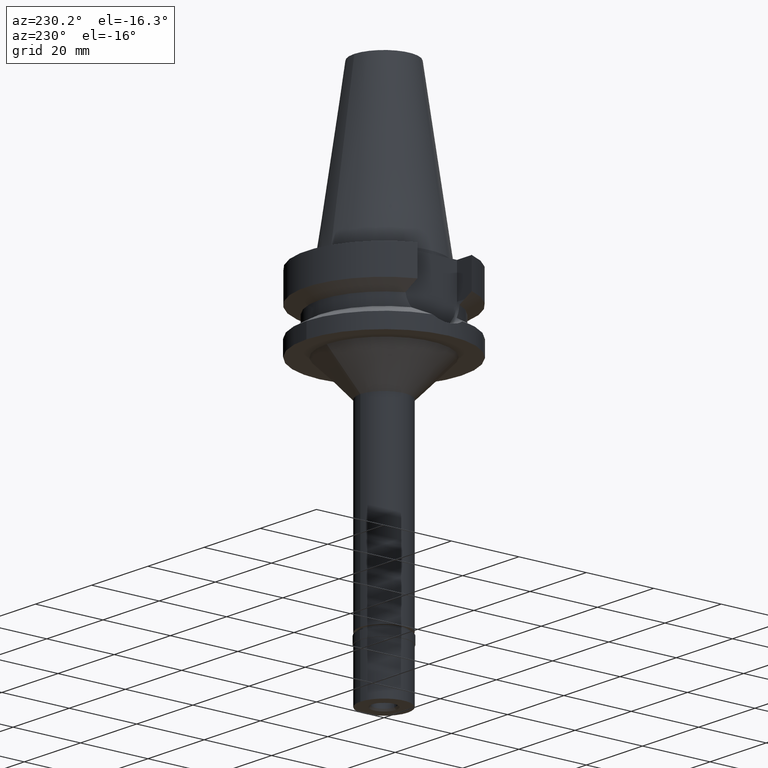
[diagram: clean part render]
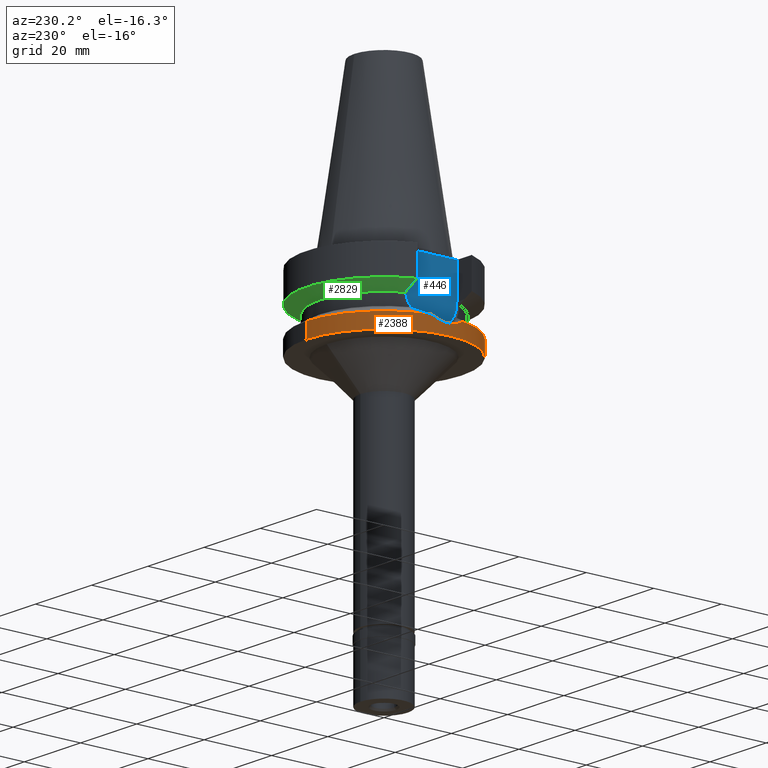
[diagram: same view with three faces highlighted in distinct colors, each labeled with its STEP entity id]
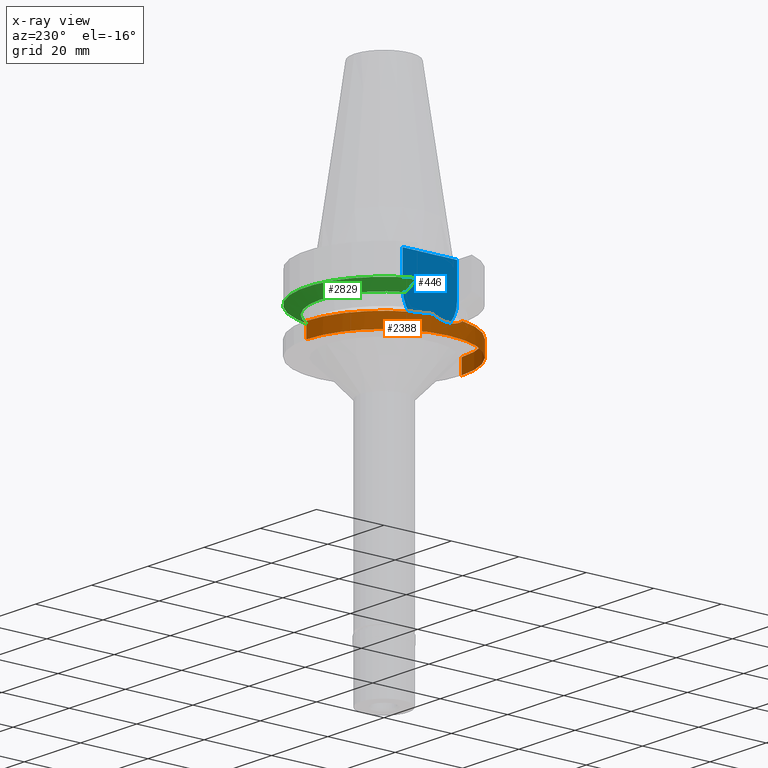
[diagram: x-ray of the same camera — body ghosted, the three highlighted faces saturated]
A machine part, auxiliary view with three faces highlighted in distinct colors.
The next image is the same camera in x-ray (body ghosted, the three faces saturated) — at least one of them is partly hidden behind the body in this view.
Their STEP definitions:

[orange] entity #2388 — the highlighted cylindrical surface (partial cylindrical patch) has radius 23.0018 mm, axis along (0, 0, -1).
#2 = CARTESIAN_POINT ( 'NONE',  ( -22.88683763572254648, -2.297901760489376333, -18.66510098225285574 ) ) ;
#41 = CARTESIAN_POINT ( 'NONE',  ( 0.0000000000000000000, -23.00179173279000011, -17.63279163029000074 ) ) ;
#47 = CARTESIAN_POINT ( 'NONE',  ( -22.86908857843803489, 2.468659208218110468, -18.61236205488814477 ) ) ;
#87 = DIRECTION ( 'NONE',  ( 0.0000000000000000000, -1.000000000000000000, 0.0000000000000000000 ) ) ;
#248 = CARTESIAN_POINT ( 'NONE',  ( 0.0000000000000000000, 1.908856965831000054E-14, 55.87000000000000455 ) ) ;
#279 = VECTOR ( 'NONE', #1576, 1000.000000000000000 ) ;
#305 = DIRECTION ( 'NONE',  ( -0.9807796963072338281, 0.1951183930630069618, 0.0000000000000000000 ) ) ;
#327 = CARTESIAN_POINT ( 'NONE',  ( -22.80337106430317462, 3.017825907546090924, -18.41532620679325660 ) ) ;
#346 = DIRECTION ( 'NONE',  ( 0.0000000000000000000, -1.000000000000000000, 0.0000000000000000000 ) ) ;
#406 = CARTESIAN_POINT ( 'NONE',  ( -22.70544777319404162, -3.755409983498743554, -18.12483797968343779 ) ) ;
#433 = CARTESIAN_POINT ( 'NONE',  ( -22.91445897748248584, -2.007266898677665612, -18.74685992708022297 ) ) ;
#599 = CARTESIAN_POINT ( 'NONE',  ( -22.89872747336698211, -2.176930864838070967, -18.70034899222827107 ) ) ;
#611 = ORIENTED_EDGE ( 'NONE', *, *, #1856, .T. ) ;
#614 = CARTESIAN_POINT ( 'NONE',  ( -22.96136588453317273, -1.374708691584109577, -18.88419230124738135 ) ) ;
#654 = CARTESIAN_POINT ( 'NONE',  ( -22.81290002801110717, -3.019387173993733686, -18.44551728955970304 ) ) ;
#679 = AXIS2_PLACEMENT_3D ( 'NONE', #1871, #1634, #305 ) ;
#700 = ORIENTED_EDGE ( 'NONE', *, *, #1373, .T. ) ;
#754 = DIRECTION ( 'NONE',  ( 0.0000000000000000000, 0.0000000000000000000, -1.000000000000000000 ) ) ;
#845 = CARTESIAN_POINT ( 'NONE',  ( -22.55969031021000148, -4.488072640469000341, -17.63279163029000074 ) ) ;
#858 = CARTESIAN_POINT ( 'NONE',  ( -23.00147481190156284, -0.4023083650609952655, -18.99906577970628518 ) ) ;
#869 = CARTESIAN_POINT ( 'NONE',  ( -22.92414606561529311, 1.929659902256844140, -18.77578589235107742 ) ) ;
#880 = DIRECTION ( 'NONE',  ( 0.0000000000000000000, 2.359143140496999862E-14, -1.000000000000000000 ) ) ;
#893 = DIRECTION ( 'NONE',  ( 0.0000000000000000000, 0.0000000000000000000, 1.000000000000000000 ) ) ;
#984 = CARTESIAN_POINT ( 'NONE',  ( 0.0000000000000000000, 1.022848384030000006E-14, -17.63279163029000074 ) ) ;
#1055 = AXIS2_PLACEMENT_3D ( 'NONE', #984, #754, #346 ) ;
#1096 = CARTESIAN_POINT ( 'NONE',  ( -22.89163966835612385, -2.249530064134759311, -18.67934344933468438 ) ) ;
#1144 = CARTESIAN_POINT ( 'NONE',  ( -22.85236161706714597, 2.620217275548352376, -18.56259893309938036 ) ) ;
#1158 = CARTESIAN_POINT ( 'NONE',  ( 0.0000000000000000000, 1.908856965831000054E-14, -22.00000000000000000 ) ) ;
#1167 = ORIENTED_EDGE ( 'NONE', *, *, #2584, .T. ) ;
#1260 = CIRCLE ( 'NONE', #2104, 23.00179173279000011 ) ;
#1269 = DIRECTION ( 'NONE',  ( 0.0000000000000000000, 0.0000000000000000000, -1.000000000000000000 ) ) ;
#1282 = CARTESIAN_POINT ( 'NONE',  ( 0.0000000000000000000, -23.00179173279000011, -22.00000000000000000 ) ) ;
#1333 = CARTESIAN_POINT ( 'NONE',  ( -22.94891873178276853, -1.569622508110775527, -18.84800932749935498 ) ) ;
#1362 = CARTESIAN_POINT ( 'NONE',  ( -22.83664459859521756, 2.752015595190267838, -18.51557184285181279 ) ) ;
#1373 = EDGE_CURVE ( 'NONE', #1696, #2766, #1260, .T. ) ;
#1454 = EDGE_CURVE ( 'NONE', #1931, #2766, #2033, .T. ) ;
#1513 = VERTEX_POINT ( 'NONE', #2096 ) ;
#1544 = CARTESIAN_POINT ( 'NONE',  ( -22.92656019659325395, -1.861472741078133764, -18.78245560300419115 ) ) ;
#1576 = DIRECTION ( 'NONE',  ( 0.0000000000000000000, -2.440492903962000069E-14, -1.000000000000000000 ) ) ;
#1590 = VERTEX_POINT ( 'NONE', #2771 ) ;
#1603 = CARTESIAN_POINT ( 'NONE',  ( -22.87591237041562309, 2.404204865289406357, -18.63262990206403558 ) ) ;
#1634 = DIRECTION ( 'NONE',  ( 0.0000000000000000000, 0.0000000000000000000, -1.000000000000000000 ) ) ;
#1655 = CARTESIAN_POINT ( 'NONE',  ( -22.55969031021000148, 4.488072640469000341, -17.63279163029000074 ) ) ;
#1671 = CARTESIAN_POINT ( 'NONE',  ( 0.0000000000000000000, -23.00179173279000011, -17.63279163029000074 ) ) ;
#1696 = VERTEX_POINT ( 'NONE', #1716 ) ;
#1716 = CARTESIAN_POINT ( 'NONE',  ( 0.0000000000000000000, 23.00179173279000011, -22.00000000000000000 ) ) ;
#1721 = CARTESIAN_POINT ( 'NONE',  ( -22.95353229043699272, 1.537844633182663845, -18.86160926903724544 ) ) ;
#1771 = LINE ( 'NONE', #2659, #279 ) ;
#1782 = CARTESIAN_POINT ( 'NONE',  ( -22.88420791986901293, -2.323919442665608681, -18.65729419150555302 ) ) ;
#1838 = ORIENTED_EDGE ( 'NONE', *, *, #1454, .F. ) ;
#1856 = EDGE_CURVE ( 'NONE', #1931, #2633, #2019, .T. ) ;
#1871 = CARTESIAN_POINT ( 'NONE',  ( 0.0000000000000000000, 1.022848384030000006E-14, -17.63279163029000074 ) ) ;
#1928 = AXIS2_PLACEMENT_3D ( 'NONE', #248, #1269, #87 ) ;
#1931 = VERTEX_POINT ( 'NONE', #1671 ) ;
#1957 = EDGE_CURVE ( 'NONE', #1590, #2633, #2238, .T. ) ;
#1970 = FACE_OUTER_BOUND ( 'NONE', #2606, .T. ) ;
#1976 = CIRCLE ( 'NONE', #679, 23.00179173279000366 ) ;
#1988 = CARTESIAN_POINT ( 'NONE',  ( -23.00209267538404134, 0.3640104090927325786, -19.00088866950159527 ) ) ;
#2017 = CARTESIAN_POINT ( 'NONE',  ( -22.99250659872179980, 0.7558972828412429124, -18.97416018281776573 ) ) ;
#2019 = CIRCLE ( 'NONE', #1055, 23.00179173279000011 ) ;
#2033 = LINE ( 'NONE', #41, #2327 ) ;
#2096 = CARTESIAN_POINT ( 'NONE',  ( 0.0000000000000000000, 23.00179173279000011, -17.63279163029000074 ) ) ;
#2104 = AXIS2_PLACEMENT_3D ( 'NONE', #1158, #893, #2456 ) ;
#2140 = EDGE_CURVE ( 'NONE', #1590, #1513, #1976, .T. ) ;
#2209 = ORIENTED_EDGE ( 'NONE', *, *, #2140, .T. ) ;
#2238 = B_SPLINE_CURVE_WITH_KNOTS ( 'NONE', 3,
 ( #1655, #2600, #2558, #2332, #327, #1362, #1144, #47, #1603, #2282, #2340, #869, #1721, #2017, #1988, #858, #2616, #614, #1333, #1544, #433, #599, #1096, #2, #1782, #654, #406, #2455 ),
 .UNSPECIFIED., .F., .F.,
 ( 4, 2, 2, 1, 1, 2, 2, 2, 2, 2, 2, 1, 1, 2, 2, 4 ),
 ( 0.0000000000000000000, 0.1250000000000016376, 0.1875000000000023037, 0.2187500000000026368, 0.2343750000000027478, 0.2421875000000028866, 0.2500000000000030531, 0.3750000000000024425, 0.5000000000000018874, 0.6250000000000013323, 0.6875000000000009992, 0.7187500000000009992, 0.7343750000000009992, 0.7421875000000008882, 0.7500000000000006661, 1.000000000000000000 ),
 .UNSPECIFIED. ) ;
#2282 = CARTESIAN_POINT ( 'NONE',  ( -22.88038491934450747, 2.361349070443628406, -18.64591020048210979 ) ) ;
#2327 = VECTOR ( 'NONE', #880, 1000.000000000000000 ) ;
#2332 = CARTESIAN_POINT ( 'NONE',  ( -22.77873604497753135, 3.197995635199903486, -18.34023798776388148 ) ) ;
#2340 = CARTESIAN_POINT ( 'NONE',  ( -22.88240543914549008, 2.341738608537581534, -18.65190891674451379 ) ) ;
#2388 = ADVANCED_FACE ( 'NONE', ( #1970 ), #2440, .T. ) ;
#2440 = CYLINDRICAL_SURFACE ( 'NONE', #1928, 23.00179173279000011 ) ;
#2455 = CARTESIAN_POINT ( 'NONE',  ( -22.55969031021000148, -4.488072640469000341, -17.63279163029000074 ) ) ;
#2456 = DIRECTION ( 'NONE',  ( 0.0000000000000000000, 1.000000000000000000, 0.0000000000000000000 ) ) ;
#2558 = CARTESIAN_POINT ( 'NONE',  ( -22.69747299760774339, 3.744533364398335173, -18.08737656825610429 ) ) ;
#2584 = EDGE_CURVE ( 'NONE', #1513, #1696, #1771, .T. ) ;
#2600 = CARTESIAN_POINT ( 'NONE',  ( -22.63348698017077254, 4.117127213840920952, -17.88191357100869183 ) ) ;
#2606 = EDGE_LOOP ( 'NONE', ( #2209, #1167, #700, #1838, #611, #2765 ) ) ;
#2616 = CARTESIAN_POINT ( 'NONE',  ( -22.99133173065650126, -0.7906771909124814535, -18.97073908186342805 ) ) ;
#2633 = VERTEX_POINT ( 'NONE', #845 ) ;
#2659 = CARTESIAN_POINT ( 'NONE',  ( 0.0000000000000000000, 23.00179173279000011, -17.63279163029000074 ) ) ;
#2765 = ORIENTED_EDGE ( 'NONE', *, *, #1957, .F. ) ;
#2766 = VERTEX_POINT ( 'NONE', #1282 ) ;
#2771 = CARTESIAN_POINT ( 'NONE',  ( -22.55969031021000148, 4.488072640469000341, -17.63279163029000074 ) ) ;

[blue] entity #446 — the highlighted planar face has unit normal (-1, 0, 0).
#16 = DIRECTION ( 'NONE',  ( 0.0000000000000000000, 0.0000000000000000000, -1.000000000000000000 ) ) ;
#53 = VECTOR ( 'NONE', #2665, 1000.000000000000000 ) ;
#160 = FACE_OUTER_BOUND ( 'NONE', #1018, .T. ) ;
#197 = VECTOR ( 'NONE', #1837, 1000.000000000000000 ) ;
#254 = ORIENTED_EDGE ( 'NONE', *, *, #2216, .F. ) ;
#409 = VERTEX_POINT ( 'NONE', #1757 ) ;
#446 = ADVANCED_FACE ( 'NONE', ( #160 ), #2875, .T. ) ;
#737 = EDGE_CURVE ( 'NONE', #851, #1009, #1673, .T. ) ;
#748 = LINE ( 'NONE', #1433, #197 ) ;
#764 = CARTESIAN_POINT ( 'NONE',  ( -16.29999999999999716, 2.249676170033999711E-14, 0.0000000000000000000 ) ) ;
#851 = VERTEX_POINT ( 'NONE', #1907 ) ;
#940 = DIRECTION ( 'NONE',  ( 1.000000000000000000, 0.0000000000000000000, 0.0000000000000000000 ) ) ;
#950 = CARTESIAN_POINT ( 'NONE',  ( -16.29999999999999716, -8.050000000000000711, -10.94999999999999929 ) ) ;
#1009 = VERTEX_POINT ( 'NONE', #1388 ) ;
#1018 = EDGE_LOOP ( 'NONE', ( #2629, #1759, #254, #2498 ) ) ;
#1083 = DIRECTION ( 'NONE',  ( -1.000000000000000000, 0.0000000000000000000, 0.0000000000000000000 ) ) ;
#1168 = CARTESIAN_POINT ( 'NONE',  ( -16.29999999999999716, 8.050000000000000711, -10.94999999999999929 ) ) ;
#1313 = CIRCLE ( 'NONE', #1926, 8.050000000000000711 ) ;
#1324 = AXIS2_PLACEMENT_3D ( 'NONE', #764, #1083, #2150 ) ;
#1388 = CARTESIAN_POINT ( 'NONE',  ( -16.29999999999999716, 8.050000000000000711, -1.000000000000000000 ) ) ;
#1433 = CARTESIAN_POINT ( 'NONE',  ( -16.29999999999999716, -8.050000000000000711, -1.000000000000000000 ) ) ;
#1673 = LINE ( 'NONE', #2577, #2118 ) ;
#1757 = CARTESIAN_POINT ( 'NONE',  ( -16.29999999999999716, 8.050000000000000711, -10.94999999999999929 ) ) ;
#1759 = ORIENTED_EDGE ( 'NONE', *, *, #2277, .F. ) ;
#1806 = LINE ( 'NONE', #1168, #53 ) ;
#1837 = DIRECTION ( 'NONE',  ( 0.0000000000000000000, 0.0000000000000000000, -1.000000000000000000 ) ) ;
#1907 = CARTESIAN_POINT ( 'NONE',  ( -16.29999999999999716, -8.050000000000000711, -1.000000000000000000 ) ) ;
#1926 = AXIS2_PLACEMENT_3D ( 'NONE', #2075, #940, #16 ) ;
#2075 = CARTESIAN_POINT ( 'NONE',  ( -16.29999999999999716, 1.981478521019999946E-14, -10.94999999999999929 ) ) ;
#2118 = VECTOR ( 'NONE', #2760, 1000.000000000000000 ) ;
#2150 = DIRECTION ( 'NONE',  ( 0.0000000000000000000, 0.0000000000000000000, 1.000000000000000000 ) ) ;
#2216 = EDGE_CURVE ( 'NONE', #851, #2526, #748, .T. ) ;
#2277 = EDGE_CURVE ( 'NONE', #2526, #409, #1313, .T. ) ;
#2464 = EDGE_CURVE ( 'NONE', #409, #1009, #1806, .T. ) ;
#2498 = ORIENTED_EDGE ( 'NONE', *, *, #737, .T. ) ;
#2526 = VERTEX_POINT ( 'NONE', #950 ) ;
#2577 = CARTESIAN_POINT ( 'NONE',  ( -16.29999999999999716, -8.050000000000000711, -1.000000000000000000 ) ) ;
#2629 = ORIENTED_EDGE ( 'NONE', *, *, #2464, .F. ) ;
#2665 = DIRECTION ( 'NONE',  ( 0.0000000000000000000, 0.0000000000000000000, 1.000000000000000000 ) ) ;
#2760 = DIRECTION ( 'NONE',  ( 0.0000000000000000000, 1.000000000000000000, 0.0000000000000000000 ) ) ;
#2875 = PLANE ( 'NONE',  #1324 ) ;

[green] entity #2829 — the highlighted conical surface has half-angle 60 deg.
#10 = ORIENTED_EDGE ( 'NONE', *, *, #2188, .T. ) ;
#55 = CIRCLE ( 'NONE', #326, 19.00179173279000011 ) ;
#58 = CARTESIAN_POINT ( 'NONE',  ( 21.54715595432000086, 8.049999577580001286, -9.567211145438999864 ) ) ;
#84 = EDGE_CURVE ( 'NONE', #2093, #1554, #55, .T. ) ;
#91 = CARTESIAN_POINT ( 'NONE',  ( -18.30614086418832187, 8.050000009831565606, -11.30245586456448770 ) ) ;
#98 = ORIENTED_EDGE ( 'NONE', *, *, #84, .F. ) ;
#292 = ORIENTED_EDGE ( 'NONE', *, *, #2756, .F. ) ;
#318 = DIRECTION ( 'NONE',  ( 0.0000000000000000000, 0.0000000000000000000, 1.000000000000000000 ) ) ;
#326 = AXIS2_PLACEMENT_3D ( 'NONE', #2668, #1583, #1371 ) ;
#440 = AXIS2_PLACEMENT_3D ( 'NONE', #2761, #745, #1647 ) ;
#486 = ORIENTED_EDGE ( 'NONE', *, *, #2308, .T. ) ;
#528 = CARTESIAN_POINT ( 'NONE',  ( 0.0000000000000000000, 1.093341284896999988E-14, -10.72190890808999875 ) ) ;
#531 = CARTESIAN_POINT ( 'NONE',  ( -20.64294842795839457, 8.050004183981446459, -10.05623772875332378 ) ) ;
#715 = B_SPLINE_CURVE_WITH_KNOTS ( 'NONE', 3,
 ( #1642, #91, #953, #770 ),
 .UNSPECIFIED., .F., .F.,
 ( 4, 4 ),
 ( 0.0000000000000000000, 1.000000000000000000 ),
 .UNSPECIFIED. ) ;
#741 = CARTESIAN_POINT ( 'NONE',  ( 17.23729139327999960, 7.996491145917000054, -11.87660607788999911 ) ) ;
#745 = DIRECTION ( 'NONE',  ( 0.0000000000000000000, 0.0000000000000000000, 1.000000000000000000 ) ) ;
#770 = CARTESIAN_POINT ( 'NONE',  ( -17.23728651730000294, 7.996501750113999663, -11.87660739318000047 ) ) ;
#850 = B_SPLINE_CURVE_WITH_KNOTS ( 'NONE', 3,
 ( #2509, #2553, #531, #916 ),
 .UNSPECIFIED., .F., .F.,
 ( 4, 4 ),
 ( 0.0000000000000000000, 1.000000000000000000 ),
 .UNSPECIFIED. ) ;
#895 = CARTESIAN_POINT ( 'NONE',  ( 21.54715595432000086, 8.049999577580001286, -9.567211145438999864 ) ) ;
#916 = CARTESIAN_POINT ( 'NONE',  ( -21.54715501431999769, 8.050002093644000212, -9.567194611493999190 ) ) ;
#925 = CARTESIAN_POINT ( 'NONE',  ( 18.96933606582999943, 8.049994318240999647, -10.95000099912000024 ) ) ;
#929 = EDGE_LOOP ( 'NONE', ( #292, #486, #2702, #98, #1119, #10 ) ) ;
#953 = CARTESIAN_POINT ( 'NONE',  ( -17.72880027695165595, 8.027186592829725242, -11.61172482192135647 ) ) ;
#991 = AXIS2_PLACEMENT_3D ( 'NONE', #528, #318, #1209 ) ;
#1020 = CARTESIAN_POINT ( 'NONE',  ( -18.96930827901000072, 8.050001277694001089, -10.94999977544999936 ) ) ;
#1092 = CARTESIAN_POINT ( 'NONE',  ( 17.23729139327999960, 7.996491145917000054, -11.87660607788999911 ) ) ;
#1119 = ORIENTED_EDGE ( 'NONE', *, *, #1557, .F. ) ;
#1127 = CARTESIAN_POINT ( 'NONE',  ( 20.64291703308855119, 8.049999155853317490, -10.05625574561198476 ) ) ;
#1209 = DIRECTION ( 'NONE',  ( 0.0000000000000000000, 1.000000000000000000, 0.0000000000000000000 ) ) ;
#1226 = FACE_OUTER_BOUND ( 'NONE', #929, .T. ) ;
#1245 = CONICAL_SURFACE ( 'NONE', #991, 21.00179173279000011, 1.047197551196400456 ) ;
#1273 = CARTESIAN_POINT ( 'NONE',  ( 18.96933606582999943, 8.049994318240999647, -10.95000099912000024 ) ) ;
#1274 = VERTEX_POINT ( 'NONE', #1706 ) ;
#1323 = VERTEX_POINT ( 'NONE', #58 ) ;
#1371 = DIRECTION ( 'NONE',  ( 0.0000000000000000000, 1.000000000000000000, 0.0000000000000000000 ) ) ;
#1554 = VERTEX_POINT ( 'NONE', #741 ) ;
#1557 = EDGE_CURVE ( 'NONE', #2371, #2093, #715, .T. ) ;
#1583 = DIRECTION ( 'NONE',  ( 0.0000000000000000000, 0.0000000000000000000, -1.000000000000000000 ) ) ;
#1642 = CARTESIAN_POINT ( 'NONE',  ( -18.96930827901000072, 8.050001277694001089, -10.94999977544999936 ) ) ;
#1647 = DIRECTION ( 'NONE',  ( 0.0000000000000000000, 1.000000000000000000, 0.0000000000000000000 ) ) ;
#1650 = CARTESIAN_POINT ( 'NONE',  ( -17.23728651730000294, 7.996501750113999663, -11.87660739318000047 ) ) ;
#1706 = CARTESIAN_POINT ( 'NONE',  ( -21.54715501431999769, 8.050002093644000212, -9.567194611493999190 ) ) ;
#1764 = VERTEX_POINT ( 'NONE', #1273 ) ;
#1776 = EDGE_CURVE ( 'NONE', #1554, #1764, #2518, .T. ) ;
#2093 = VERTEX_POINT ( 'NONE', #1650 ) ;
#2178 = CARTESIAN_POINT ( 'NONE',  ( 17.72796404386471636, 8.027134092584116587, -11.61217786755064729 ) ) ;
#2188 = EDGE_CURVE ( 'NONE', #2371, #1274, #850, .T. ) ;
#2193 = CARTESIAN_POINT ( 'NONE',  ( 18.30531226804804845, 8.049999956198563567, -11.30291237852571484 ) ) ;
#2194 = CIRCLE ( 'NONE', #440, 23.00179173279000011 ) ;
#2308 = EDGE_CURVE ( 'NONE', #1323, #1764, #2791, .T. ) ;
#2371 = VERTEX_POINT ( 'NONE', #1020 ) ;
#2509 = CARTESIAN_POINT ( 'NONE',  ( -18.96930827901000072, 8.050001277694001089, -10.94999977544999936 ) ) ;
#2518 = B_SPLINE_CURVE_WITH_KNOTS ( 'NONE', 3,
 ( #1092, #2178, #2193, #2610 ),
 .UNSPECIFIED., .F., .F.,
 ( 4, 4 ),
 ( 0.0000000000000000000, 1.000000000000000000 ),
 .UNSPECIFIED. ) ;
#2553 = CARTESIAN_POINT ( 'NONE',  ( -19.78370503542712555, 8.050001299476088334, -10.51716938125409051 ) ) ;
#2610 = CARTESIAN_POINT ( 'NONE',  ( 18.96933606582999943, 8.049994318240999647, -10.95000099912000024 ) ) ;
#2668 = CARTESIAN_POINT ( 'NONE',  ( 0.0000000000000000000, 1.093341284896999988E-14, -11.87660944646999894 ) ) ;
#2702 = ORIENTED_EDGE ( 'NONE', *, *, #1776, .F. ) ;
#2745 = CARTESIAN_POINT ( 'NONE',  ( 19.78368344201062001, 8.049991904562061151, -10.51718282267504101 ) ) ;
#2756 = EDGE_CURVE ( 'NONE', #1323, #1274, #2194, .T. ) ;
#2761 = CARTESIAN_POINT ( 'NONE',  ( 0.0000000000000000000, 1.093341284896999988E-14, -9.567208369710998639 ) ) ;
#2791 = B_SPLINE_CURVE_WITH_KNOTS ( 'NONE', 3,
 ( #895, #1127, #2745, #925 ),
 .UNSPECIFIED., .F., .F.,
 ( 4, 4 ),
 ( 0.0000000000000000000, 1.000000000000000000 ),
 .UNSPECIFIED. ) ;
#2829 = ADVANCED_FACE ( 'NONE', ( #1226 ), #1245, .T. ) ;